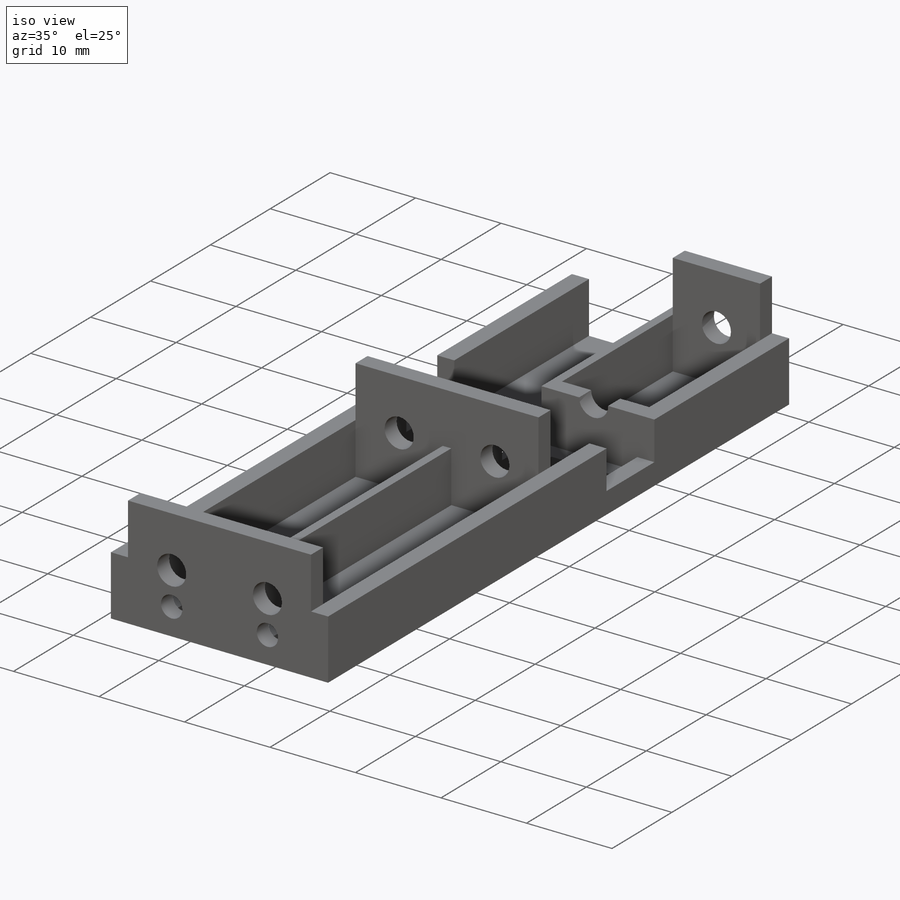
[diagram: iso view]
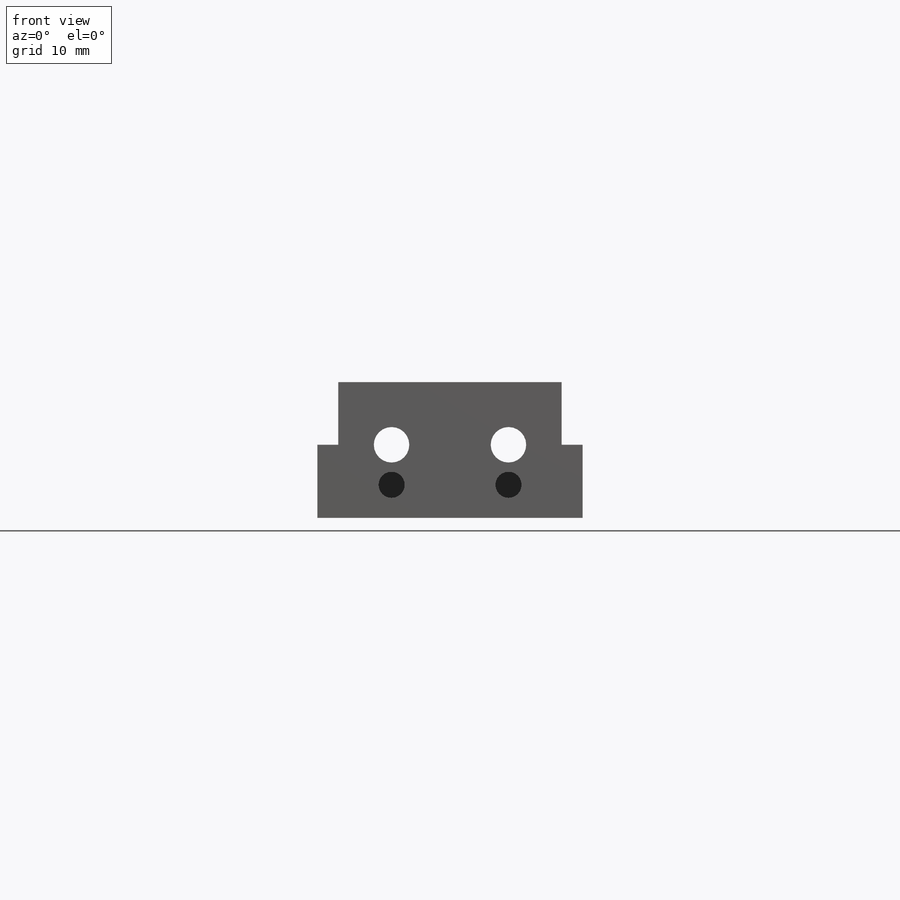
[diagram: front view]
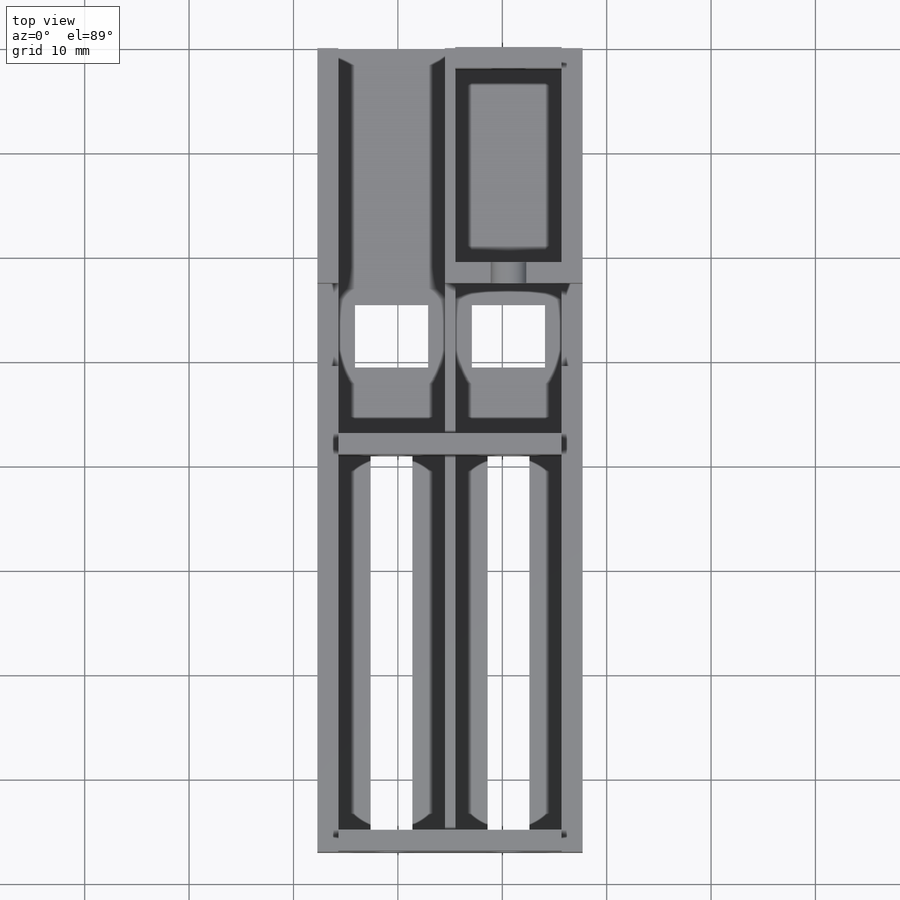
[diagram: top view]
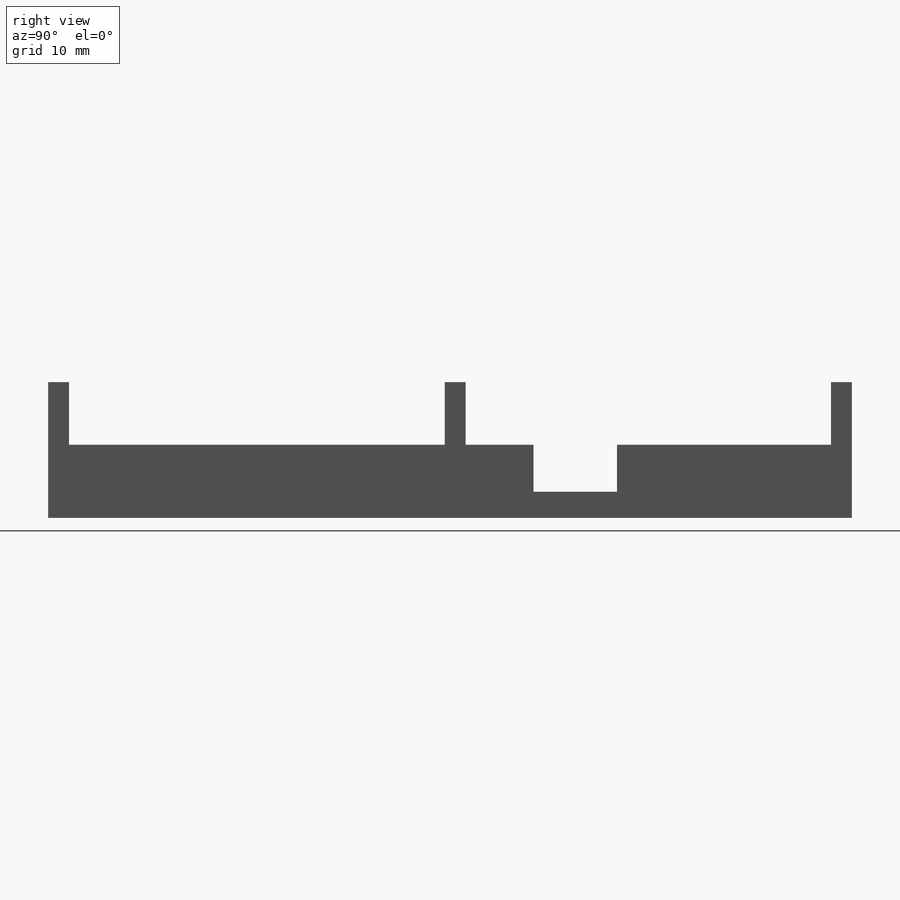
[diagram: right view]
SOLIDWORKS PART (.sldprt)
format: sldprt  version: not decoded by parser v0  size: 483,328 bytes
history: native  units: mm
features: sketch x8, extrude x5, cut_extrude x3, material x1 (+13 scaffold rows collapsed)
feature tree (30):
  scaffold x13  (default folders/planes/origin — collapsed)
  material  "Material <not specified>"
  sketch  "Sketch2"  dims[c1.D1=16.0mm c1.D2=14.2mm c2.D1=1.0mm]
  extrude  "Gearbox Mount"  Depth=77mm
  sketch  "Sketch7"  dims[c1.D1=12.0mm c1.D2=10.2mm c2.D1=~8.038782mm]
  extrude  "Boss-Extrude6"  Depth=2mm
  sketch  "Sketch8"  dims[c1.D1=12.0mm c1.D2=10.2mm c2.D1=~4.429319mm]
  extrude  "Boss-Extrude7"  Depth=2mm
  sketch  "Sketch9"  dims[c1.D1=1.0mm c1.D2=10.2mm c2.D1=1.0mm c2.D2=10.2mm c3.D1=7.0mm]
  sketch  "Sketch10"  dims[c1.D1=~0.978468mm c1.D2=~1.395642mm c2.D1=12.0mm c2.D2=23.4mm c3.D1=12.0mm c3.D2=25.4mm c4.D1=1.5mm]
  cut_extrude  "Cut-Extrude1"  Depth=8mm
  sketch  "Sketch11"  dims[c1.D1=12.0mm c1.D2=10.2mm c2.D1=~21.324732mm]
  extrude  "Boss-Extrude9"  Depth=2mm
  sketch  "Sketch12"  dims[c1.D1=12.0mm c1.D2=10.2mm c2.D1=~21.324732mm]
  extrude  "Boss-Extrude10"  Depth=2mm
  cut_extrude  "Cut-Extrude2"  Depth=6mm
  sketch  "Sketch13"  dims[D1=~6.036784mm]
  cut_extrude  "Cut-Extrude3"  Depth=36mm
decode coverage: 16 of 16 modeling features carry decoded parameters
note: ~ marks probable driven/reference dimensions
note: suppression state not decoded; provenance and decode notes live in map.json
